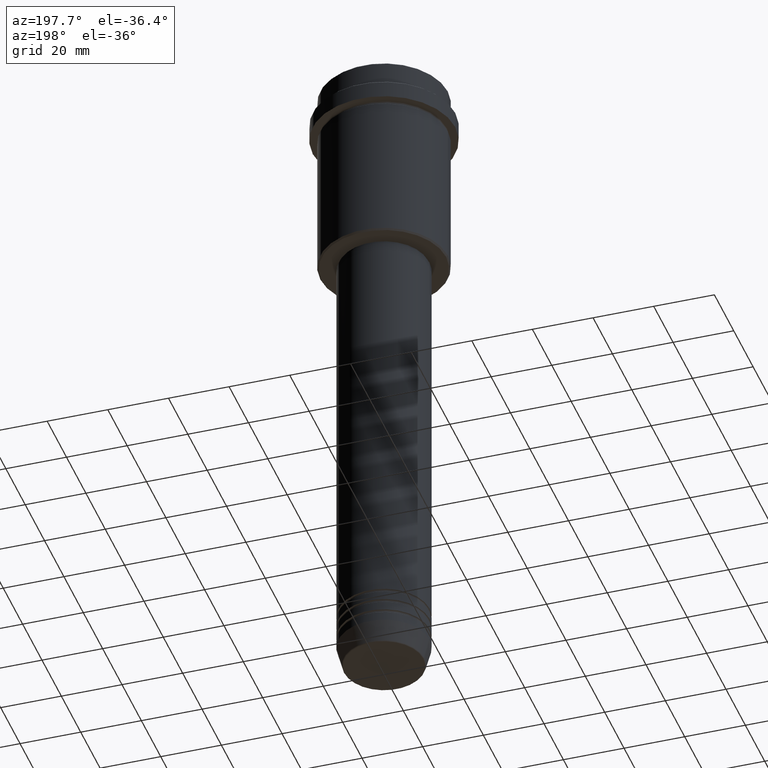
[diagram: clean part render]
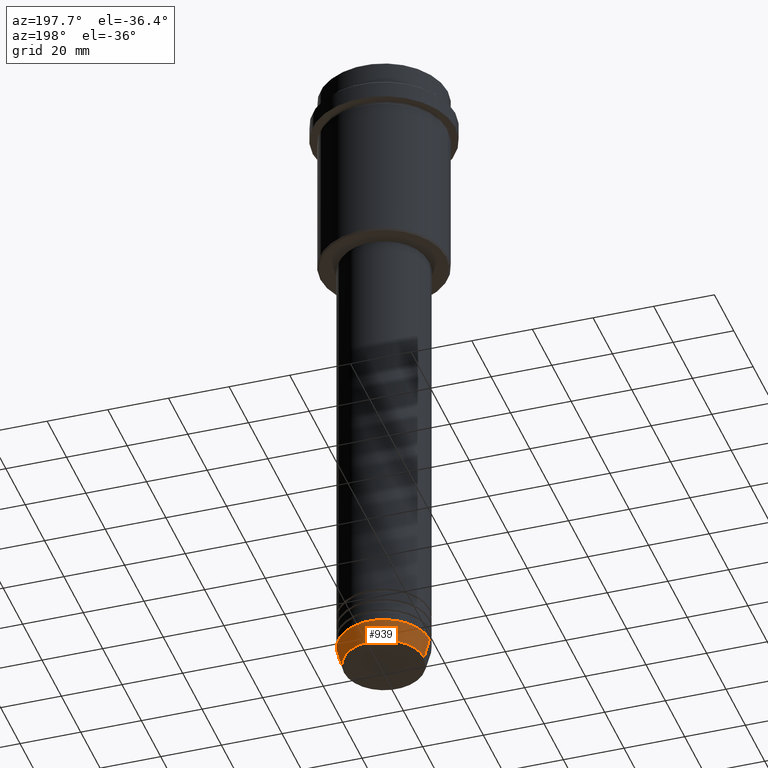
[diagram: same view with one face highlighted and labeled with its STEP entity id]
A machine part, auxiliary view. The second image highlights one B-rep face of the part: STEP entity #939.
In plain terms, the highlighted conical surface has half-angle 15 deg.
Its self-contained STEP definition (entity closure, byte-faithful):
#152 = DIRECTION ( 'NONE',  ( 0.2588190451025205174, 0.000000000000000000, 0.9659258262890684232 ) ) ;
#185 = VECTOR ( 'NONE', #152, 1000.000000000000114 ) ;
#197 = CARTESIAN_POINT ( 'NONE',  ( -15.00000000000000000, 1.836970198721029589E-15, -213.0000000000000284 ) ) ;
#202 = CARTESIAN_POINT ( 'NONE',  ( -15.00000000000000000, 1.836970198721029589E-15, -213.0000000000000284 ) ) ;
#245 = CARTESIAN_POINT ( 'NONE',  ( 0.000000000000000000, 0.000000000000000000, -213.0000000000000284 ) ) ;
#251 = DIRECTION ( 'NONE',  ( 1.000000000000000000, 0.000000000000000000, 0.000000000000000000 ) ) ;
#261 = AXIS2_PLACEMENT_3D ( 'NONE', #707, #1233, #251 ) ;
#308 = LINE ( 'NONE', #202, #1091 ) ;
#313 = EDGE_CURVE ( 'NONE', #393, #760, #579, .T. ) ;
#321 = ORIENTED_EDGE ( 'NONE', *, *, #1090, .T. ) ;
#364 = DIRECTION ( 'NONE',  ( 1.000000000000000000, 0.000000000000000000, 0.000000000000000000 ) ) ;
#377 = CARTESIAN_POINT ( 'NONE',  ( 0.000000000000000000, 0.000000000000000000, -219.6294095225512990 ) ) ;
#393 = VERTEX_POINT ( 'NONE', #592 ) ;
#442 = CARTESIAN_POINT ( 'NONE',  ( -13.22365507213720015, 1.728200442216588780E-15, -219.6294095225512990 ) ) ;
#447 = ORIENTED_EDGE ( 'NONE', *, *, #596, .T. ) ;
#544 = CIRCLE ( 'NONE', #908, 13.22365507213720015 ) ;
#579 = LINE ( 'NONE', #712, #185 ) ;
#586 = AXIS2_PLACEMENT_3D ( 'NONE', #245, #1006, #1388 ) ;
#592 = CARTESIAN_POINT ( 'NONE',  ( 13.22365507213720015, 0.000000000000000000, -219.6294095225512990 ) ) ;
#596 = EDGE_CURVE ( 'NONE', #393, #1318, #544, .T. ) ;
#678 = CIRCLE ( 'NONE', #261, 15.00000000000000000 ) ;
#707 = CARTESIAN_POINT ( 'NONE',  ( 0.000000000000000000, 0.000000000000000000, -213.0000000000000284 ) ) ;
#712 = CARTESIAN_POINT ( 'NONE',  ( 15.00000000000000000, 0.000000000000000000, -213.0000000000000284 ) ) ;
#741 = VERTEX_POINT ( 'NONE', #197 ) ;
#760 = VERTEX_POINT ( 'NONE', #1316 ) ;
#899 = EDGE_LOOP ( 'NONE', ( #447, #321, #1283, #1235 ) ) ;
#908 = AXIS2_PLACEMENT_3D ( 'NONE', #377, #1357, #364 ) ;
#932 = CONICAL_SURFACE ( 'NONE', #586, 15.00000000000000000, 0.2617993877991491303 ) ;
#939 = ADVANCED_FACE ( 'NONE', ( #1018 ), #932, .T. ) ;
#966 = EDGE_CURVE ( 'NONE', #760, #741, #678, .T. ) ;
#1006 = DIRECTION ( 'NONE',  ( -0.000000000000000000, -0.000000000000000000, 1.000000000000000000 ) ) ;
#1018 = FACE_OUTER_BOUND ( 'NONE', #899, .T. ) ;
#1070 = DIRECTION ( 'NONE',  ( -0.2588190451025205174, 3.169619151431761243E-17, 0.9659258262890684232 ) ) ;
#1090 = EDGE_CURVE ( 'NONE', #1318, #741, #308, .T. ) ;
#1091 = VECTOR ( 'NONE', #1070, 1000.000000000000114 ) ;
#1233 = DIRECTION ( 'NONE',  ( -0.000000000000000000, -0.000000000000000000, 1.000000000000000000 ) ) ;
#1235 = ORIENTED_EDGE ( 'NONE', *, *, #313, .F. ) ;
#1283 = ORIENTED_EDGE ( 'NONE', *, *, #966, .F. ) ;
#1316 = CARTESIAN_POINT ( 'NONE',  ( 15.00000000000000000, 0.000000000000000000, -213.0000000000000284 ) ) ;
#1318 = VERTEX_POINT ( 'NONE', #442 ) ;
#1357 = DIRECTION ( 'NONE',  ( -0.000000000000000000, -0.000000000000000000, 1.000000000000000000 ) ) ;
#1388 = DIRECTION ( 'NONE',  ( 1.000000000000000000, 0.000000000000000000, 0.000000000000000000 ) ) ;